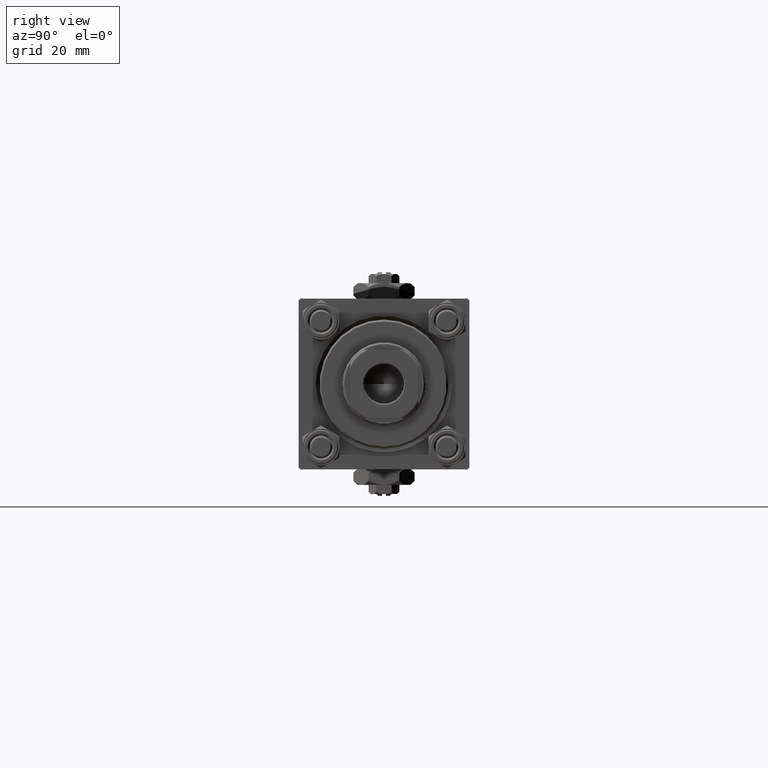
[diagram: clean part render]
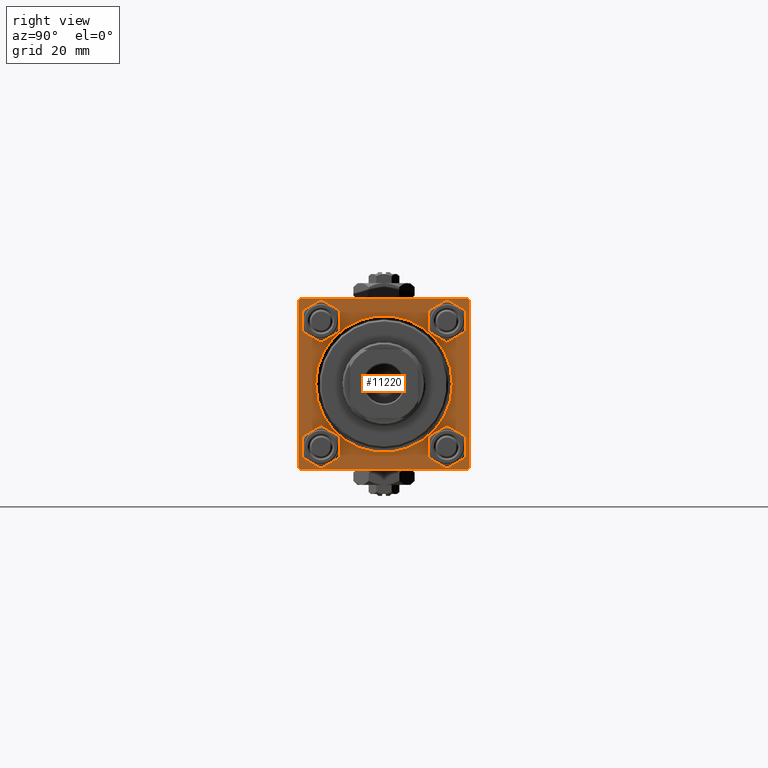
[diagram: same view with one face highlighted and labeled with its STEP entity id]
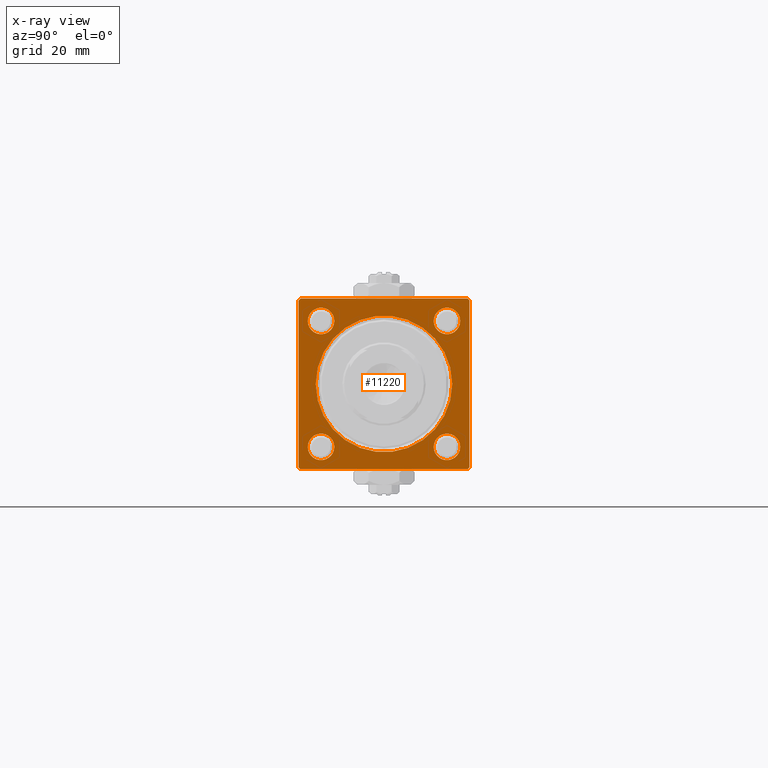
[diagram: x-ray of the same camera — body ghosted, the highlighted face saturated]
A machine part, right view. The second image highlights one B-rep face of the part: STEP entity #11220.
The next image is the same camera in x-ray: the body ghosted, the highlighted face saturated — about 0% of this face is hidden behind the body in this view.
In plain terms, the highlighted planar face has unit normal (-1, 0, -0).
Its self-contained STEP definition (entity closure, byte-faithful):
#97 = CARTESIAN_POINT ( 'NONE',  ( 123.0000000000000142, 21.99999999999996092, 22.50000000000000355 ) ) ;
#239 = VECTOR ( 'NONE', #42126, 1000.000000000000000 ) ;
#1049 = AXIS2_PLACEMENT_3D ( 'NONE', #48410, #16292, #40581 ) ;
#1165 = CARTESIAN_POINT ( 'NONE',  ( 123.0000000000000142, 22.50000000000000355, -21.99999999999999645 ) ) ;
#1242 = CARTESIAN_POINT ( 'NONE',  ( 123.0000000000000142, 2.204364238465235822E-15, 18.00000000000000355 ) ) ;
#1323 = VERTEX_POINT ( 'NONE', #97 ) ;
#1426 = DIRECTION ( 'NONE',  ( 0.000000000000000000, -0.7071067811865573427, 0.7071067811865378028 ) ) ;
#2734 = VERTEX_POINT ( 'NONE', #40236 ) ;
#3080 = CARTESIAN_POINT ( 'NONE',  ( 123.0000000000000142, -16.59999999999999787, 20.10000000000002629 ) ) ;
#4335 = CIRCLE ( 'NONE', #40227, 3.500000000000031086 ) ;
#4555 = LINE ( 'NONE', #32521, #38163 ) ;
#4682 = DIRECTION ( 'NONE',  ( 0.000000000000000000, 0.000000000000000000, 1.000000000000000000 ) ) ;
#4972 = EDGE_CURVE ( 'NONE', #41850, #29788, #29945, .T. ) ;
#5205 = VECTOR ( 'NONE', #1426, 1000.000000000000000 ) ;
#5810 = LINE ( 'NONE', #21756, #239 ) ;
#5855 = VERTEX_POINT ( 'NONE', #7008 ) ;
#6316 = VERTEX_POINT ( 'NONE', #16762 ) ;
#6364 = LINE ( 'NONE', #22310, #10162 ) ;
#7008 = CARTESIAN_POINT ( 'NONE',  ( 123.0000000000000142, -22.49999999999999645, -21.99999999999997868 ) ) ;
#7027 = EDGE_CURVE ( 'NONE', #10456, #14193, #46701, .T. ) ;
#7167 = DIRECTION ( 'NONE',  ( 0.000000000000000000, 0.7071067811865425767, -0.7071067811865525687 ) ) ;
#7521 = FACE_BOUND ( 'NONE', #28184, .T. ) ;
#7603 = VERTEX_POINT ( 'NONE', #9862 ) ;
#7912 = CARTESIAN_POINT ( 'NONE',  ( 123.0000000000000142, 16.59999999999999787, -13.09999999999997300 ) ) ;
#8122 = DIRECTION ( 'NONE',  ( 0.000000000000000000, 0.000000000000000000, 1.000000000000000000 ) ) ;
#8284 = CARTESIAN_POINT ( 'NONE',  ( 123.0000000000000142, 0.000000000000000000, 0.000000000000000000 ) ) ;
#8509 = EDGE_LOOP ( 'NONE', ( #32961, #36277, #35324, #44901, #40202, #26189, #14668, #31584 ) ) ;
#8640 = DIRECTION ( 'NONE',  ( -1.000000000000000000, 0.000000000000000000, -0.000000000000000000 ) ) ;
#8718 = DIRECTION ( 'NONE',  ( 0.000000000000000000, 0.000000000000000000, 1.000000000000000000 ) ) ;
#9501 = CARTESIAN_POINT ( 'NONE',  ( 123.0000000000000142, 22.00000000000000355, -22.49999999999999645 ) ) ;
#9791 = LINE ( 'NONE', #17133, #42748 ) ;
#9851 = CIRCLE ( 'NONE', #49081, 3.499999999999989342 ) ;
#9862 = CARTESIAN_POINT ( 'NONE',  ( 123.0000000000000142, -16.59999999999999787, 13.09999999999996589 ) ) ;
#10162 = VECTOR ( 'NONE', #46343, 1000.000000000000000 ) ;
#10453 = ORIENTED_EDGE ( 'NONE', *, *, #20788, .T. ) ;
#10456 = VERTEX_POINT ( 'NONE', #9501 ) ;
#10461 = CIRCLE ( 'NONE', #24617, 3.500000000000031086 ) ;
#11220 = ADVANCED_FACE ( 'NONE', ( #31566, #43823, #7521, #47238, #48001, #39406 ), #12226, .F. ) ;
#11239 = DIRECTION ( 'NONE',  ( -1.000000000000000000, 0.000000000000000000, -0.000000000000000000 ) ) ;
#11543 = DIRECTION ( 'NONE',  ( 0.000000000000000000, 0.000000000000000000, 1.000000000000000000 ) ) ;
#11707 = DIRECTION ( 'NONE',  ( -1.000000000000000000, 0.000000000000000000, -0.000000000000000000 ) ) ;
#11763 = CIRCLE ( 'NONE', #18455, 3.500000000000031086 ) ;
#12226 = PLANE ( 'NONE',  #49317 ) ;
#12245 = ORIENTED_EDGE ( 'NONE', *, *, #16253, .T. ) ;
#12559 = DIRECTION ( 'NONE',  ( 0.000000000000000000, 0.000000000000000000, 1.000000000000000000 ) ) ;
#13445 = CARTESIAN_POINT ( 'NONE',  ( 123.0000000000000142, 22.50000000000000355, 22.50000000000000355 ) ) ;
#13916 = EDGE_CURVE ( 'NONE', #29788, #41850, #4335, .T. ) ;
#14193 = VERTEX_POINT ( 'NONE', #45665 ) ;
#14399 = CARTESIAN_POINT ( 'NONE',  ( 123.0000000000000142, 16.59999999999999787, -16.60000000000000497 ) ) ;
#14574 = EDGE_LOOP ( 'NONE', ( #42280, #50181 ) ) ;
#14668 = ORIENTED_EDGE ( 'NONE', *, *, #38573, .T. ) ;
#15195 = CARTESIAN_POINT ( 'NONE',  ( 123.0000000000000142, -21.99999999999998224, 22.49999999999999289 ) ) ;
#15718 = EDGE_CURVE ( 'NONE', #10456, #45118, #6364, .T. ) ;
#16018 = ORIENTED_EDGE ( 'NONE', *, *, #40860, .T. ) ;
#16253 = EDGE_CURVE ( 'NONE', #25157, #7603, #25190, .T. ) ;
#16292 = DIRECTION ( 'NONE',  ( -1.000000000000000000, 0.000000000000000000, -0.000000000000000000 ) ) ;
#16762 = CARTESIAN_POINT ( 'NONE',  ( 123.0000000000000142, -22.49999999999999645, 22.00000000000000711 ) ) ;
#17083 = CARTESIAN_POINT ( 'NONE',  ( 123.0000000000000142, 16.59999999999999787, 16.60000000000000497 ) ) ;
#17133 = CARTESIAN_POINT ( 'NONE',  ( 123.0000000000000142, -22.49999999999999645, 22.00000000000000711 ) ) ;
#18455 = AXIS2_PLACEMENT_3D ( 'NONE', #48758, #49009, #40142 ) ;
#18611 = CIRCLE ( 'NONE', #25262, 3.499999999999989342 ) ;
#19618 = DIRECTION ( 'NONE',  ( 0.000000000000000000, 0.000000000000000000, 1.000000000000000000 ) ) ;
#20197 = AXIS2_PLACEMENT_3D ( 'NONE', #40487, #32144, #4682 ) ;
#20283 = VERTEX_POINT ( 'NONE', #1242 ) ;
#20788 = EDGE_CURVE ( 'NONE', #37770, #32366, #9851, .T. ) ;
#21327 = EDGE_LOOP ( 'NONE', ( #16018, #25563 ) ) ;
#21642 = ORIENTED_EDGE ( 'NONE', *, *, #4972, .T. ) ;
#21756 = CARTESIAN_POINT ( 'NONE',  ( 123.0000000000000142, 22.50000000000000355, 22.50000000000000355 ) ) ;
#22310 = CARTESIAN_POINT ( 'NONE',  ( 123.0000000000000142, 22.50000000000000355, -22.00000000000001066 ) ) ;
#22939 = CARTESIAN_POINT ( 'NONE',  ( 123.0000000000000142, 22.50000000000000355, -22.49999999999999645 ) ) ;
#23311 = DIRECTION ( 'NONE',  ( -1.000000000000000000, 0.000000000000000000, -0.000000000000000000 ) ) ;
#23891 = DIRECTION ( 'NONE',  ( -1.000000000000000000, 0.000000000000000000, -0.000000000000000000 ) ) ;
#24617 = AXIS2_PLACEMENT_3D ( 'NONE', #31660, #23311, #11543 ) ;
#24935 = DIRECTION ( 'NONE',  ( 0.000000000000000000, 0.000000000000000000, -1.000000000000000000 ) ) ;
#25157 = VERTEX_POINT ( 'NONE', #3080 ) ;
#25190 = CIRCLE ( 'NONE', #20197, 3.500000000000031086 ) ;
#25262 = AXIS2_PLACEMENT_3D ( 'NONE', #43644, #48334, #12559 ) ;
#25563 = ORIENTED_EDGE ( 'NONE', *, *, #28516, .T. ) ;
#25625 = CIRCLE ( 'NONE', #46478, 18.00000000000000355 ) ;
#26189 = ORIENTED_EDGE ( 'NONE', *, *, #50339, .T. ) ;
#26918 = CARTESIAN_POINT ( 'NONE',  ( 123.0000000000000142, -16.60000000000000497, -13.09999999999997300 ) ) ;
#26950 = DIRECTION ( 'NONE',  ( -1.000000000000000000, 0.000000000000000000, -0.000000000000000000 ) ) ;
#27177 = DIRECTION ( 'NONE',  ( 0.000000000000000000, 0.000000000000000000, 1.000000000000000000 ) ) ;
#27934 = CARTESIAN_POINT ( 'NONE',  ( 123.0000000000000142, 16.59999999999999787, -20.10000000000003340 ) ) ;
#27990 = CARTESIAN_POINT ( 'NONE',  ( 123.0000000000000142, -16.60000000000000497, -16.60000000000000497 ) ) ;
#28184 = EDGE_LOOP ( 'NONE', ( #31828, #10453 ) ) ;
#28316 = DIRECTION ( 'NONE',  ( 0.000000000000000000, 0.000000000000000000, 1.000000000000000000 ) ) ;
#28516 = EDGE_CURVE ( 'NONE', #50053, #43462, #11763, .T. ) ;
#28575 = DIRECTION ( 'NONE',  ( -1.000000000000000000, 0.000000000000000000, -0.000000000000000000 ) ) ;
#29404 = EDGE_LOOP ( 'NONE', ( #43774, #12245 ) ) ;
#29631 = LINE ( 'NONE', #13445, #37043 ) ;
#29788 = VERTEX_POINT ( 'NONE', #7912 ) ;
#29945 = CIRCLE ( 'NONE', #46616, 3.500000000000031086 ) ;
#30608 = EDGE_CURVE ( 'NONE', #5855, #14193, #38262, .T. ) ;
#31566 = FACE_BOUND ( 'NONE', #21327, .T. ) ;
#31584 = ORIENTED_EDGE ( 'NONE', *, *, #34246, .T. ) ;
#31660 = CARTESIAN_POINT ( 'NONE',  ( 123.0000000000000142, -16.59999999999999787, 16.59999999999999787 ) ) ;
#31828 = ORIENTED_EDGE ( 'NONE', *, *, #32592, .T. ) ;
#32144 = DIRECTION ( 'NONE',  ( -1.000000000000000000, 0.000000000000000000, -0.000000000000000000 ) ) ;
#32302 = DIRECTION ( 'NONE',  ( 0.000000000000000000, -1.000000000000000000, -7.709882115452476934E-17 ) ) ;
#32335 = DIRECTION ( 'NONE',  ( -0.000000000000000000, 0.000000000000000000, 1.000000000000000000 ) ) ;
#32366 = VERTEX_POINT ( 'NONE', #39230 ) ;
#32521 = CARTESIAN_POINT ( 'NONE',  ( 123.0000000000000142, -22.49999999999999645, 22.49999999999999289 ) ) ;
#32592 = EDGE_CURVE ( 'NONE', #32366, #37770, #18611, .T. ) ;
#32961 = ORIENTED_EDGE ( 'NONE', *, *, #46581, .T. ) ;
#33078 = DIRECTION ( 'NONE',  ( -0.000000000000000000, -0.7071067811865573427, -0.7071067811865378028 ) ) ;
#33582 = VECTOR ( 'NONE', #7167, 999.9999999999998863 ) ;
#33590 = CARTESIAN_POINT ( 'NONE',  ( 123.0000000000000142, 21.99999999999996092, 22.50000000000000355 ) ) ;
#33668 = EDGE_CURVE ( 'NONE', #2734, #45118, #5810, .T. ) ;
#34246 = EDGE_CURVE ( 'NONE', #37746, #6316, #9791, .T. ) ;
#35302 = CARTESIAN_POINT ( 'NONE',  ( 123.0000000000000142, 16.59999999999999787, 20.09999999999999432 ) ) ;
#35324 = ORIENTED_EDGE ( 'NONE', *, *, #7027, .F. ) ;
#35407 = CARTESIAN_POINT ( 'NONE',  ( 123.0000000000000142, 16.59999999999999787, -16.60000000000000497 ) ) ;
#36126 = CARTESIAN_POINT ( 'NONE',  ( 123.0000000000000142, -16.60000000000000497, -20.10000000000003340 ) ) ;
#36277 = ORIENTED_EDGE ( 'NONE', *, *, #30608, .T. ) ;
#37043 = VECTOR ( 'NONE', #37735, 1000.000000000000000 ) ;
#37735 = DIRECTION ( 'NONE',  ( 0.000000000000000000, -1.000000000000000000, -2.312964634635742957E-16 ) ) ;
#37746 = VERTEX_POINT ( 'NONE', #15195 ) ;
#37770 = VERTEX_POINT ( 'NONE', #35302 ) ;
#38163 = VECTOR ( 'NONE', #24935, 1000.000000000000000 ) ;
#38214 = EDGE_LOOP ( 'NONE', ( #21642, #44102 ) ) ;
#38262 = LINE ( 'NONE', #42959, #33582 ) ;
#38573 = EDGE_CURVE ( 'NONE', #1323, #37746, #29631, .T. ) ;
#39033 = VERTEX_POINT ( 'NONE', #40820 ) ;
#39230 = CARTESIAN_POINT ( 'NONE',  ( 123.0000000000000142, 16.59999999999999787, 13.10000000000001386 ) ) ;
#39406 = FACE_OUTER_BOUND ( 'NONE', #8509, .T. ) ;
#40142 = DIRECTION ( 'NONE',  ( 0.000000000000000000, 0.000000000000000000, 1.000000000000000000 ) ) ;
#40202 = ORIENTED_EDGE ( 'NONE', *, *, #33668, .F. ) ;
#40227 = AXIS2_PLACEMENT_3D ( 'NONE', #14399, #11239, #27177 ) ;
#40236 = CARTESIAN_POINT ( 'NONE',  ( 123.0000000000000142, 22.50000000000000355, 21.99999999999997513 ) ) ;
#40264 = CIRCLE ( 'NONE', #1049, 18.00000000000000355 ) ;
#40487 = CARTESIAN_POINT ( 'NONE',  ( 123.0000000000000142, -16.59999999999999787, 16.59999999999999787 ) ) ;
#40581 = DIRECTION ( 'NONE',  ( 0.000000000000000000, 0.000000000000000000, 1.000000000000000000 ) ) ;
#40722 = EDGE_CURVE ( 'NONE', #7603, #25157, #10461, .T. ) ;
#40820 = CARTESIAN_POINT ( 'NONE',  ( 123.0000000000000142, 0.000000000000000000, -18.00000000000000355 ) ) ;
#40860 = EDGE_CURVE ( 'NONE', #43462, #50053, #45468, .T. ) ;
#41850 = VERTEX_POINT ( 'NONE', #27934 ) ;
#42126 = DIRECTION ( 'NONE',  ( 0.000000000000000000, 0.000000000000000000, -1.000000000000000000 ) ) ;
#42202 = LINE ( 'NONE', #33590, #5205 ) ;
#42280 = ORIENTED_EDGE ( 'NONE', *, *, #49585, .T. ) ;
#42748 = VECTOR ( 'NONE', #33078, 1000.000000000000000 ) ;
#42874 = CARTESIAN_POINT ( 'NONE',  ( 123.0000000000000142, 0.000000000000000000, 0.000000000000000000 ) ) ;
#42959 = CARTESIAN_POINT ( 'NONE',  ( 123.0000000000000142, -21.99999999999999645, -22.50000000000000000 ) ) ;
#43462 = VERTEX_POINT ( 'NONE', #36126 ) ;
#43644 = CARTESIAN_POINT ( 'NONE',  ( 123.0000000000000142, 16.59999999999999787, 16.60000000000000497 ) ) ;
#43774 = ORIENTED_EDGE ( 'NONE', *, *, #40722, .T. ) ;
#43823 = FACE_BOUND ( 'NONE', #38214, .T. ) ;
#44102 = ORIENTED_EDGE ( 'NONE', *, *, #13916, .T. ) ;
#44901 = ORIENTED_EDGE ( 'NONE', *, *, #15718, .T. ) ;
#45118 = VERTEX_POINT ( 'NONE', #1165 ) ;
#45468 = CIRCLE ( 'NONE', #47955, 3.500000000000031086 ) ;
#45665 = CARTESIAN_POINT ( 'NONE',  ( 123.0000000000000142, -21.99999999999998224, -22.50000000000000000 ) ) ;
#45854 = EDGE_CURVE ( 'NONE', #20283, #39033, #25625, .T. ) ;
#46343 = DIRECTION ( 'NONE',  ( -0.000000000000000000, 0.7071067811865573427, 0.7071067811865378028 ) ) ;
#46478 = AXIS2_PLACEMENT_3D ( 'NONE', #42874, #26950, #19618 ) ;
#46581 = EDGE_CURVE ( 'NONE', #6316, #5855, #4555, .T. ) ;
#46616 = AXIS2_PLACEMENT_3D ( 'NONE', #35407, #23891, #28316 ) ;
#46701 = LINE ( 'NONE', #22939, #49169 ) ;
#47238 = FACE_BOUND ( 'NONE', #29404, .T. ) ;
#47955 = AXIS2_PLACEMENT_3D ( 'NONE', #27990, #8640, #8122 ) ;
#48001 = FACE_BOUND ( 'NONE', #14574, .T. ) ;
#48334 = DIRECTION ( 'NONE',  ( -1.000000000000000000, 0.000000000000000000, -0.000000000000000000 ) ) ;
#48410 = CARTESIAN_POINT ( 'NONE',  ( 123.0000000000000142, 0.000000000000000000, 0.000000000000000000 ) ) ;
#48758 = CARTESIAN_POINT ( 'NONE',  ( 123.0000000000000142, -16.60000000000000497, -16.60000000000000497 ) ) ;
#49009 = DIRECTION ( 'NONE',  ( -1.000000000000000000, 0.000000000000000000, -0.000000000000000000 ) ) ;
#49081 = AXIS2_PLACEMENT_3D ( 'NONE', #17083, #28575, #8718 ) ;
#49169 = VECTOR ( 'NONE', #32302, 1000.000000000000000 ) ;
#49317 = AXIS2_PLACEMENT_3D ( 'NONE', #8284, #11707, #32335 ) ;
#49585 = EDGE_CURVE ( 'NONE', #39033, #20283, #40264, .T. ) ;
#50053 = VERTEX_POINT ( 'NONE', #26918 ) ;
#50181 = ORIENTED_EDGE ( 'NONE', *, *, #45854, .T. ) ;
#50339 = EDGE_CURVE ( 'NONE', #2734, #1323, #42202, .T. ) ;